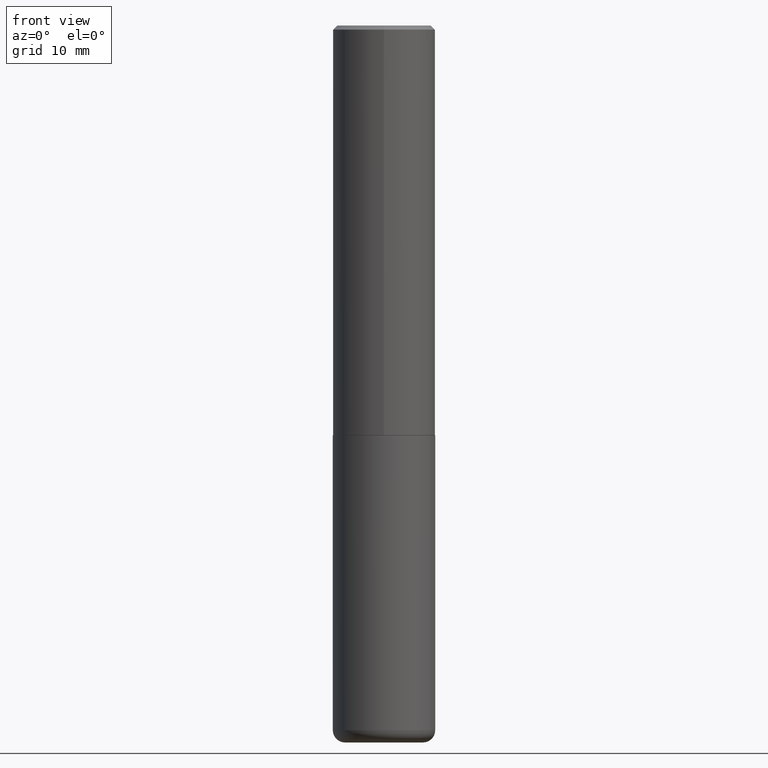
[diagram: clean part render]
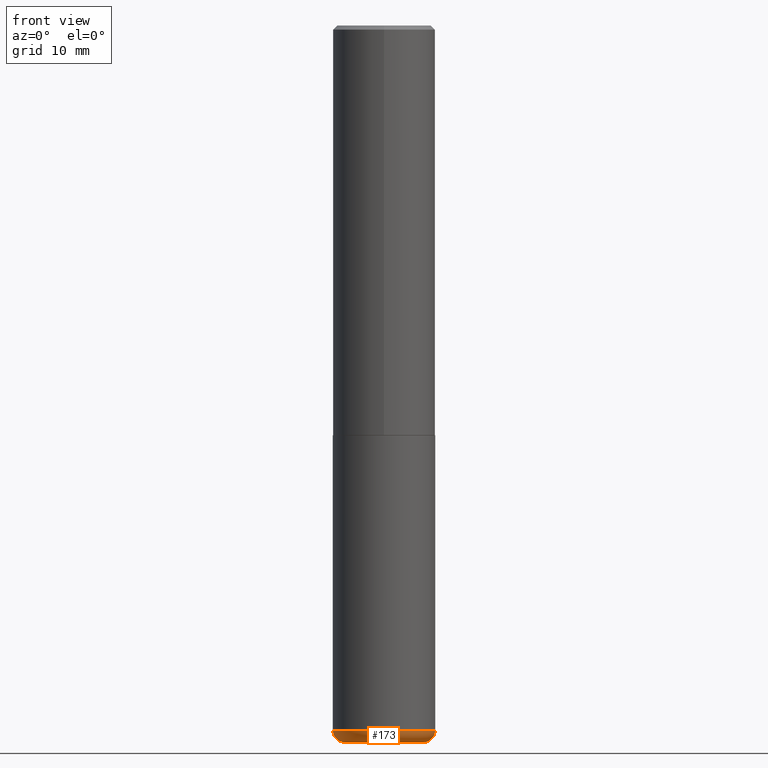
[diagram: same view with one face highlighted and labeled with its STEP entity id]
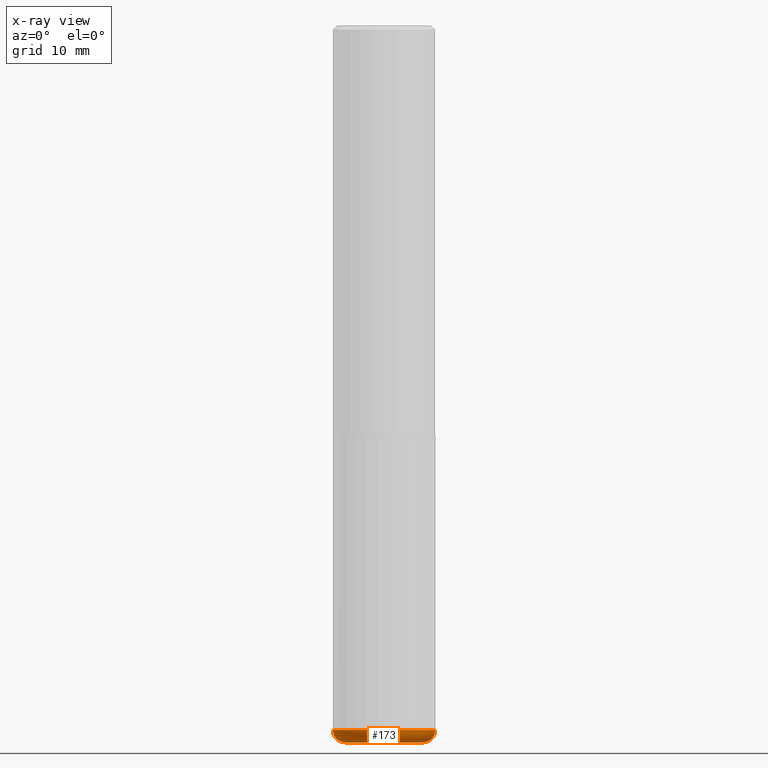
[diagram: x-ray of the same camera — body ghosted, the highlighted face saturated]
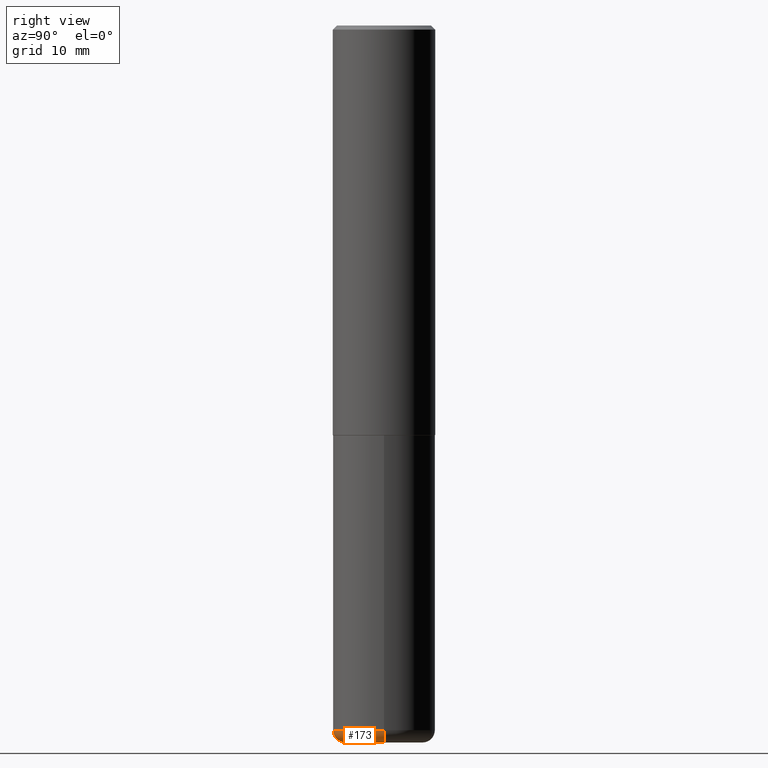
[diagram: same view with one face highlighted and labeled with its STEP entity id]
A machine part, front view. The second image highlights one B-rep face of the part: STEP entity #173.
The next image is the same camera in x-ray: the body ghosted, the highlighted face saturated — about 0% of this face is hidden behind the body in this view.
A second angle (right view) of the same face is appended — the face is thin or edge-on in the first view.
In plain terms, the highlighted toroidal blend (fillet) surface has major radius 4.826 mm and minor (blend) radius 1.524 mm.
Its self-contained STEP definition (entity closure, byte-faithful):
#11 = AXIS2_PLACEMENT_3D ( 'NONE', #74, #359, #169 ) ;
#34 = DIRECTION ( 'NONE',  ( 1.000000000000000000, -6.982962677686270655E-15, 0.000000000000000000 ) ) ;
#41 = DIRECTION ( 'NONE',  ( -6.982962677686266711E-15, -1.000000000000000000, 3.491481338843145583E-15 ) ) ;
#43 = DIRECTION ( 'NONE',  ( 1.000000000000000000, -6.982962677686265133E-15, 4.883557194083112340E-29 ) ) ;
#62 = EDGE_CURVE ( 'NONE', #225, #285, #342, .T. ) ;
#74 = CARTESIAN_POINT ( 'NONE',  ( 8.559140821647976968E-29, -1.222018468595100934E-14, -3.500000000000000000 ) ) ;
#97 = TOROIDAL_SURFACE ( 'NONE', #193, 0.1899999999999999745, 0.05999999999999995615 ) ;
#101 = CARTESIAN_POINT ( 'NONE',  ( -0.2499999999999999722, -1.023433896622016898E-14, -3.439999999999999947 ) ) ;
#105 = CARTESIAN_POINT ( 'NONE',  ( 8.412412693276869938E-29, -1.201069580562042103E-14, -3.439999999999999947 ) ) ;
#119 = EDGE_CURVE ( 'NONE', #366, #152, #355, .T. ) ;
#145 = CIRCLE ( 'NONE', #11, 0.1899999999999999745 ) ;
#152 = VERTEX_POINT ( 'NONE', #336 ) ;
#162 = ORIENTED_EDGE ( 'NONE', *, *, #405, .T. ) ;
#166 = CARTESIAN_POINT ( 'NONE',  ( 0.1899999999999999745, -1.354694759471140096E-14, -3.500000000000000000 ) ) ;
#169 = DIRECTION ( 'NONE',  ( 1.000000000000000000, -6.982962677686273021E-15, 0.000000000000000000 ) ) ;
#171 = FACE_OUTER_BOUND ( 'NONE', #306, .T. ) ;
#173 = ADVANCED_FACE ( 'NONE', ( #171 ), #97, .T. ) ;
#177 = EDGE_CURVE ( 'NONE', #285, #152, #270, .T. ) ;
#193 = AXIS2_PLACEMENT_3D ( 'NONE', #357, #297, #43 ) ;
#211 = AXIS2_PLACEMENT_3D ( 'NONE', #358, #41, #272 ) ;
#213 = DIRECTION ( 'NONE',  ( 7.105427357601001859E-15, 1.000000000000000000, -3.491481338843145583E-15 ) ) ;
#216 = DIRECTION ( 'NONE',  ( -1.000000000000000000, 7.105427357600997914E-15, 0.000000000000000000 ) ) ;
#225 = VERTEX_POINT ( 'NONE', #368 ) ;
#231 = ORIENTED_EDGE ( 'NONE', *, *, #62, .F. ) ;
#247 = DIRECTION ( 'NONE',  ( -2.445468806185136597E-29, 3.491481338843145583E-15, 1.000000000000000000 ) ) ;
#257 = AXIS2_PLACEMENT_3D ( 'NONE', #371, #213, #216 ) ;
#270 = CIRCLE ( 'NONE', #303, 0.2500000000000000000 ) ;
#272 = DIRECTION ( 'NONE',  ( 1.000000000000000000, -6.982962677686274599E-15, 0.000000000000000000 ) ) ;
#285 = VERTEX_POINT ( 'NONE', #101 ) ;
#297 = DIRECTION ( 'NONE',  ( -2.445468806185136597E-29, 3.491481338843145583E-15, 1.000000000000000000 ) ) ;
#303 = AXIS2_PLACEMENT_3D ( 'NONE', #105, #247, #34 ) ;
#306 = EDGE_LOOP ( 'NONE', ( #231, #162, #318, #382 ) ) ;
#318 = ORIENTED_EDGE ( 'NONE', *, *, #119, .T. ) ;
#336 = CARTESIAN_POINT ( 'NONE',  ( 0.2499999999999999722, -1.375643647504198770E-14, -3.439999999999999947 ) ) ;
#342 = CIRCLE ( 'NONE', #257, 0.05999999999999994227 ) ;
#355 = CIRCLE ( 'NONE', #211, 0.05999999999999994227 ) ;
#357 = CARTESIAN_POINT ( 'NONE',  ( 8.412412693276869938E-29, -1.201069580562042103E-14, -3.439999999999999947 ) ) ;
#358 = CARTESIAN_POINT ( 'NONE',  ( 0.1899999999999999745, -1.333745871438081265E-14, -3.439999999999999947 ) ) ;
#359 = DIRECTION ( 'NONE',  ( -2.445468806185136597E-29, 3.491481338843145583E-15, 1.000000000000000000 ) ) ;
#366 = VERTEX_POINT ( 'NONE', #166 ) ;
#368 = CARTESIAN_POINT ( 'NONE',  ( -0.1899999999999999745, -1.055224622711349575E-14, -3.500000000000000000 ) ) ;
#371 = CARTESIAN_POINT ( 'NONE',  ( -0.1899999999999999745, -1.066066460767623105E-14, -3.439999999999999947 ) ) ;
#382 = ORIENTED_EDGE ( 'NONE', *, *, #177, .F. ) ;
#405 = EDGE_CURVE ( 'NONE', #225, #366, #145, .T. ) ;